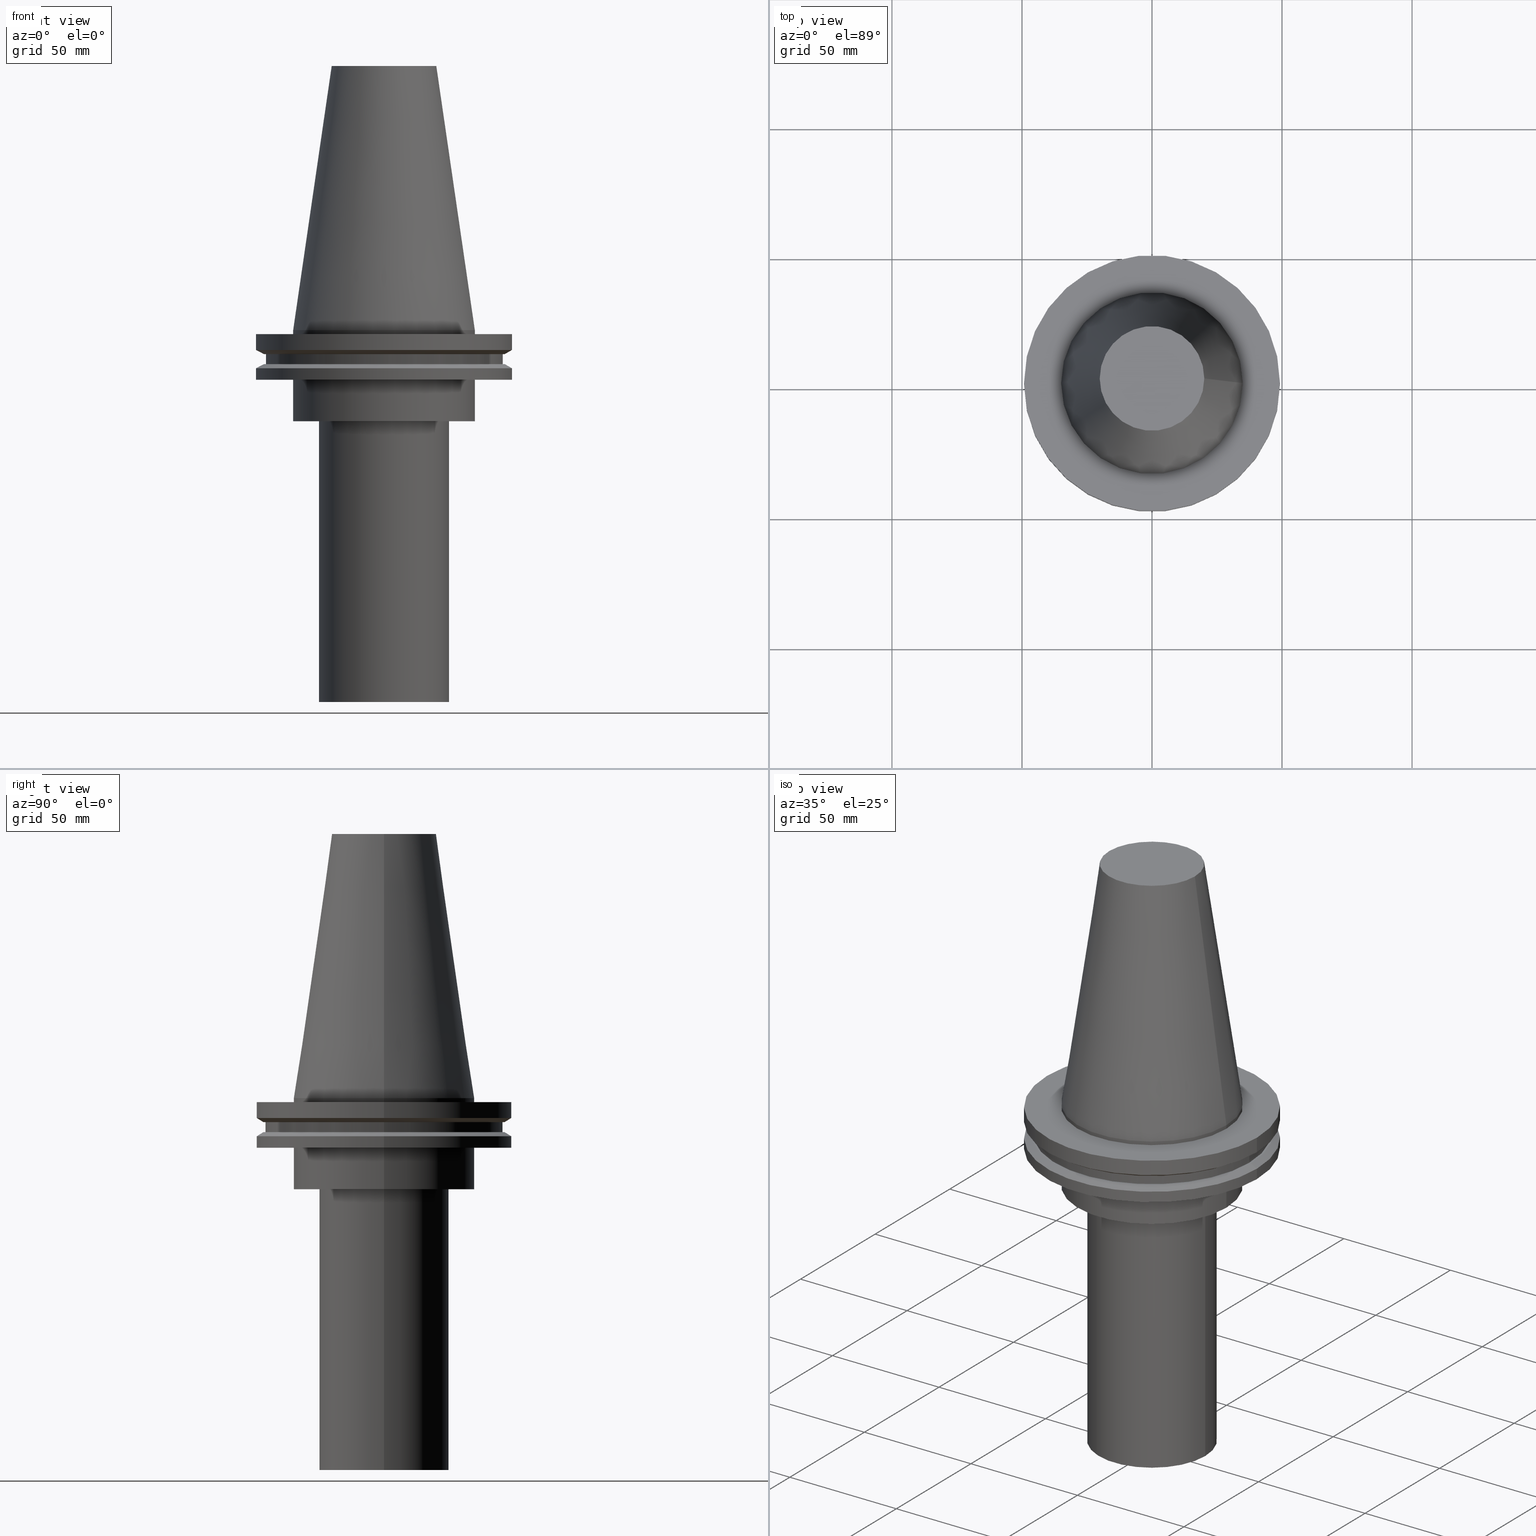
[diagram: canonical four-view strip — front | top / right | iso, engineering-drawing reading convention]
A machine part, canonical four-view strip (front | top / right | iso — engineering-drawing reading convention). The complete STEP part file that produces these views, byte-faithful:
ISO-10303-21;
HEADER;
FILE_DESCRIPTION (( 'STEP AP203' ),
    '1' );
FILE_NAME ('11.326.654.stp',
    '2022-03-09T14:51:51',
    ( '' ),
    ( '' ),
    'SwSTEP 2.0',
    'SolidWorks 2021',
    '' );
FILE_SCHEMA (( 'CONFIG_CONTROL_DESIGN' ));
ENDSEC;

DATA;
#1 = ORIENTED_EDGE ( 'NONE', *, *, #270, .F. ) ;
#2 = CYLINDRICAL_SURFACE ( 'NONE', #19, 25.00000000000000000 ) ;
#3 = PLANE ( 'NONE',  #97 ) ;
#4 = CALENDAR_DATE ( 2022, 9, 3 ) ;
#5 = FACE_OUTER_BOUND ( 'NONE', #246, .T. ) ;
#6 = AXIS2_PLACEMENT_3D ( 'NONE', #144, #106, #351 ) ;
#7 = LOCAL_TIME ( 8, 51, 51.00000000000000000, #321 ) ;
#8 = APPROVAL ( #382, 'UNSPECIFIED' ) ;
#9 = CARTESIAN_POINT ( 'NONE',  ( 0.000000000000000000, 0.000000000000000000, 0.000000000000000000 ) ) ;
#10 = CARTESIAN_POINT ( 'NONE',  ( 34.92499999999999716, 0.000000000000000000, -35.00000000000000000 ) ) ;
#11 = CARTESIAN_POINT ( 'NONE',  ( 0.000000000000000000, 0.000000000000000000, 101.5999999999999943 ) ) ;
#12 = DIRECTION ( 'NONE',  ( 0.000000000000000000, 0.000000000000000000, 1.000000000000000000 ) ) ;
#13 = APPROVAL_STATUS ( 'not_yet_approved' ) ;
#14 = AXIS2_PLACEMENT_3D ( 'NONE', #113, #89, #356 ) ;
#15 = AXIS2_PLACEMENT_3D ( 'NONE', #336, #12, #315 ) ;
#16 = CARTESIAN_POINT ( 'NONE',  ( 0.000000000000000000, 0.000000000000000000, 101.5999999999999801 ) ) ;
#17 = CARTESIAN_POINT ( 'NONE',  ( 0.000000000000000000, 25.00000000000000000, -142.9999999999999716 ) ) ;
#18 = APPROVAL_ROLE ( '' ) ;
#19 = AXIS2_PLACEMENT_3D ( 'NONE', #243, #173, #180 ) ;
#20 = EDGE_CURVE ( 'NONE', #332, #332, #350, .T. ) ;
#21 = FACE_OUTER_BOUND ( 'NONE', #328, .T. ) ;
#22 = CC_DESIGN_APPROVAL ( #250, ( #44 ) ) ;
#23 = ORIENTED_EDGE ( 'NONE', *, *, #115, .T. ) ;
#24 = CARTESIAN_POINT ( 'NONE',  ( 0.000000000000000000, 0.000000000000000000, -19.04999999999999716 ) ) ;
#25 = DIRECTION ( 'NONE',  ( 1.000000000000000000, 0.000000000000000000, 0.000000000000000000 ) ) ;
#26 = DIRECTION ( 'NONE',  ( 1.000000000000000000, 0.000000000000000000, 0.000000000000000000 ) ) ;
#27 = ORIENTED_EDGE ( 'NONE', *, *, #139, .F. ) ;
#28 = APPLICATION_PROTOCOL_DEFINITION ( 'international standard', 'config_control_design', 1994, #277 ) ;
#29 = CC_DESIGN_PERSON_AND_ORGANIZATION_ASSIGNMENT ( #76, #346, ( #46 ) ) ;
#30 = ORIENTED_EDGE ( 'NONE', *, *, #183, .T. ) ;
#31 = PRODUCT_DEFINITION_FORMATION_WITH_SPECIFIED_SOURCE ( 'ANY', '', #309, .NOT_KNOWN. ) ;
#32 = APPROVAL_DATE_TIME ( #157, #250 ) ;
#33 = DIRECTION ( 'NONE',  ( 1.000000000000000000, 0.000000000000000000, 0.000000000000000000 ) ) ;
#34 = ADVANCED_FACE ( 'NONE', ( #150, #247 ), #3, .F. ) ;
#35 = CARTESIAN_POINT ( 'NONE',  ( 34.92499999999999005, 0.000000000000000000, -1.499999999999987566 ) ) ;
#36 = DIRECTION ( 'NONE',  ( -0.000000000000000000, -0.000000000000000000, 1.000000000000000000 ) ) ;
#37 = MECHANICAL_CONTEXT ( 'NONE', #277, 'mechanical' ) ;
#38 = CARTESIAN_POINT ( 'NONE',  ( 0.000000000000000000, 0.000000000000000000, 0.000000000000000000 ) ) ;
#39 = ADVANCED_FACE ( 'NONE', ( #5 ), #241, .F. ) ;
#40 = CC_DESIGN_APPROVAL ( #8, ( #31 ) ) ;
#41 = DIRECTION ( 'NONE',  ( -0.000000000000000000, -0.000000000000000000, 1.000000000000000000 ) ) ;
#42 = DESIGN_CONTEXT ( 'detailed design', #393, 'design' ) ;
#43 = CALENDAR_DATE ( 2022, 9, 3 ) ;
#44 = PRODUCT_DEFINITION ( 'UNKNOWN', '', #31, #42 ) ;
#45 = AXIS2_PLACEMENT_3D ( 'NONE', #24, #182, #252 ) ;
#46 = SECURITY_CLASSIFICATION ( '', '', #384 ) ;
#47 = DIRECTION ( 'NONE',  ( 1.000000000000000000, 0.000000000000000000, 0.000000000000000000 ) ) ;
#48 = COORDINATED_UNIVERSAL_TIME_OFFSET ( 6, 0, .BEHIND. ) ;
#49 = FACE_OUTER_BOUND ( 'NONE', #75, .T. ) ;
#50 = FACE_OUTER_BOUND ( 'NONE', #117, .T. ) ;
#51 = CIRCLE ( 'NONE', #133, 45.64500000000000313 ) ;
#52 = DIRECTION ( 'NONE',  ( -0.000000000000000000, -0.000000000000000000, 1.000000000000000000 ) ) ;
#53 = ORIENTED_EDGE ( 'NONE', *, *, #207, .F. ) ;
#54 = ORIENTED_EDGE ( 'NONE', *, *, #112, .T. ) ;
#55 = VERTEX_POINT ( 'NONE', #387 ) ;
#56 = ORIENTED_EDGE ( 'NONE', *, *, #270, .T. ) ;
#57 = AXIS2_PLACEMENT_3D ( 'NONE', #11, #36, #378 ) ;
#58 = EDGE_LOOP ( 'NONE', ( #205 ) ) ;
#59 = VERTEX_POINT ( 'NONE', #338 ) ;
#60 = MANIFOLD_SOLID_BREP ( 'CKB', #132 ) ;
#61 = ORIENTED_EDGE ( 'NONE', *, *, #161, .F. ) ;
#62 = APPLICATION_PROTOCOL_DEFINITION ( 'international standard', 'config_control_design', 1994, #393 ) ;
#63 = ADVANCED_FACE ( 'NONE', ( #357, #148 ), #193, .T. ) ;
#64 = DIRECTION ( 'NONE',  ( -0.000000000000000000, -0.000000000000000000, 1.000000000000000000 ) ) ;
#65 = AXIS2_PLACEMENT_3D ( 'NONE', #159, #319, #312 ) ;
#66 = DIRECTION ( 'NONE',  ( 1.000000000000000000, 0.000000000000000000, 0.000000000000000000 ) ) ;
#67 = DIRECTION ( 'NONE',  ( -0.000000000000000000, -0.000000000000000000, 1.000000000000000000 ) ) ;
#68 = APPROVAL_ROLE ( '' ) ;
#69 = PLANE ( 'NONE',  #85 ) ;
#70 = AXIS2_PLACEMENT_3D ( 'NONE', #370, #188, #337 ) ;
#71 = CIRCLE ( 'NONE', #110, 45.64500000000000313 ) ;
#72 = DIRECTION ( 'NONE',  ( 1.000000000000000000, 0.000000000000000000, 0.000000000000000000 ) ) ;
#73 = EDGE_CURVE ( 'NONE', #55, #55, #172, .T. ) ;
#74 = SHAPE_DEFINITION_REPRESENTATION ( #240, #365 ) ;
#75 = EDGE_LOOP ( 'NONE', ( #363 ) ) ;
#76 = PERSON_AND_ORGANIZATION ( #299, #395 ) ;
#77 = DIRECTION ( 'NONE',  ( 1.000000000000000000, 0.000000000000000000, 0.000000000000000000 ) ) ;
#78 = CIRCLE ( 'NONE', #234, 34.92499999999999005 ) ;
#79 = FACE_BOUND ( 'NONE', #276, .T. ) ;
#80 = PERSON_AND_ORGANIZATION ( #299, #395 ) ;
#81 = EDGE_CURVE ( 'NONE', #236, #236, #269, .T. ) ;
#82 = CARTESIAN_POINT ( 'NONE',  ( 20.10819343178871321, 0.000000000000000000, 101.5999999999999801 ) ) ;
#83 = EDGE_LOOP ( 'NONE', ( #147 ) ) ;
#84 = CARTESIAN_POINT ( 'NONE',  ( 0.000000000000000000, 0.000000000000000000, 101.5999999999999943 ) ) ;
#85 = AXIS2_PLACEMENT_3D ( 'NONE', #165, #135, #99 ) ;
#86 = EDGE_LOOP ( 'NONE', ( #54 ) ) ;
#87 = DIRECTION ( 'NONE',  ( 1.000000000000000000, 0.000000000000000000, 0.000000000000000000 ) ) ;
#88 = ORIENTED_EDGE ( 'NONE', *, *, #73, .F. ) ;
#89 = DIRECTION ( 'NONE',  ( -0.000000000000000000, -0.000000000000000000, 1.000000000000000000 ) ) ;
#90 = EDGE_LOOP ( 'NONE', ( #30 ) ) ;
#91 = CYLINDRICAL_SURFACE ( 'NONE', #111, 34.92499999999999716 ) ;
#92 = EDGE_LOOP ( 'NONE', ( #210 ) ) ;
#93 = VERTEX_POINT ( 'NONE', #286 ) ;
#94 = DIRECTION ( 'NONE',  ( -1.000000000000000000, 0.000000000000000000, -0.000000000000000000 ) ) ;
#95 = DIRECTION ( 'NONE',  ( 1.000000000000000000, 0.000000000000000000, 0.000000000000000000 ) ) ;
#96 = DIRECTION ( 'NONE',  ( -0.000000000000000000, -0.000000000000000000, 1.000000000000000000 ) ) ;
#97 = AXIS2_PLACEMENT_3D ( 'NONE', #154, #304, #25 ) ;
#98 = VERTEX_POINT ( 'NONE', #217 ) ;
#99 = DIRECTION ( 'NONE',  ( 1.000000000000000000, 0.000000000000000000, 0.000000000000000000 ) ) ;
#100 = CARTESIAN_POINT ( 'NONE',  ( 45.64500000000000313, 0.000000000000000000, -9.204999999999991189 ) ) ;
#101 = FACE_BOUND ( 'NONE', #327, .T. ) ;
#102 = DIRECTION ( 'NONE',  ( -0.000000000000000000, -0.000000000000000000, 1.000000000000000000 ) ) ;
#103 = CC_DESIGN_DATE_AND_TIME_ASSIGNMENT ( #122, #367, ( #44 ) ) ;
#104 = CIRCLE ( 'NONE', #366, 34.92499999999999005 ) ;
#105 = PERSON_AND_ORGANIZATION_ROLE ( 'design_supplier' ) ;
#106 = DIRECTION ( 'NONE',  ( 0.000000000000000000, -0.000000000000000000, 1.000000000000000000 ) ) ;
#107 = ORIENTED_EDGE ( 'NONE', *, *, #81, .T. ) ;
#108 = ADVANCED_FACE ( 'NONE', ( #282, #345 ), #376, .F. ) ;
#109 = CYLINDRICAL_SURFACE ( 'NONE', #325, 45.64500000000000313 ) ;
#110 = AXIS2_PLACEMENT_3D ( 'NONE', #322, #389, #268 ) ;
#111 = AXIS2_PLACEMENT_3D ( 'NONE', #302, #245, #329 ) ;
#112 = EDGE_CURVE ( 'NONE', #189, #189, #78, .T. ) ;
#113 = CARTESIAN_POINT ( 'NONE',  ( 0.000000000000000000, 0.000000000000000000, 101.5999999999999943 ) ) ;
#114 = ORIENTED_EDGE ( 'NONE', *, *, #139, .T. ) ;
#115 = EDGE_CURVE ( 'NONE', #313, #313, #226, .T. ) ;
#116 = LOCAL_TIME ( 8, 51, 51.00000000000000000, #278 ) ;
#117 = EDGE_LOOP ( 'NONE', ( #214 ) ) ;
#118 = FACE_OUTER_BOUND ( 'NONE', #142, .T. ) ;
#119 = ORIENTED_EDGE ( 'NONE', *, *, #261, .F. ) ;
#120 = CARTESIAN_POINT ( 'NONE',  ( 0.000000000000000000, 0.000000000000000000, -9.204999999999991189 ) ) ;
#121 = CARTESIAN_POINT ( 'NONE',  ( 0.000000000000000000, 20.10819343178871321, 101.5999999999999943 ) ) ;
#122 = DATE_AND_TIME ( #4, #116 ) ;
#123 = CIRCLE ( 'NONE', #181, 49.21499999999999631 ) ;
#124 = DIRECTION ( 'NONE',  ( 0.000000000000000000, 0.000000000000000000, -1.000000000000000000 ) ) ;
#125 = LOCAL_TIME ( 8, 51, 51.00000000000000000, #134 ) ;
#126 = APPROVAL_PERSON_ORGANIZATION ( #186, #250, #68 ) ;
#127 = DIRECTION ( 'NONE',  ( 1.000000000000000000, 0.000000000000000000, 0.000000000000000000 ) ) ;
#128 = VERTEX_POINT ( 'NONE', #307 ) ;
#129 = DIRECTION ( 'NONE',  ( -0.000000000000000000, -0.000000000000000000, 1.000000000000000000 ) ) ;
#130 = PERSON_AND_ORGANIZATION_ROLE ( 'design_owner' ) ;
#131 = DIRECTION ( 'NONE',  ( 1.000000000000000000, 0.000000000000000000, 0.000000000000000000 ) ) ;
#132 = CLOSED_SHELL ( 'NONE', ( #233, #39, #34, #392, #136, #347, #175, #108, #296, #239, #385, #63, #283, #371, #364, #178 ) ) ;
#133 = AXIS2_PLACEMENT_3D ( 'NONE', #260, #102, #195 ) ;
#134 = COORDINATED_UNIVERSAL_TIME_OFFSET ( 6, 0, .BEHIND. ) ;
#135 = DIRECTION ( 'NONE',  ( 0.000000000000000000, -0.000000000000000000, 1.000000000000000000 ) ) ;
#136 = ADVANCED_FACE ( 'NONE', ( #162, #101 ), #69, .F. ) ;
#137 = CARTESIAN_POINT ( 'NONE',  ( 0.000000000000000000, 0.000000000000000000, -35.00000000000000000 ) ) ;
#138 = PERSON_AND_ORGANIZATION ( #299, #395 ) ;
#139 = EDGE_CURVE ( 'NONE', #369, #369, #168, .T. ) ;
#140 = AXIS2_PLACEMENT_3D ( 'NONE', #295, #170, #265 ) ;
#141 = PLANE ( 'NONE',  #140 ) ;
#142 = EDGE_LOOP ( 'NONE', ( #1 ) ) ;
#143 = PERSON_AND_ORGANIZATION ( #299, #395 ) ;
#144 = CARTESIAN_POINT ( 'NONE',  ( 0.000000000000000000, 46.43919780457007818, -9.204999999999998295 ) ) ;
#145 = AXIS2_PLACEMENT_3D ( 'NONE', #190, #314, #160 ) ;
#146 = FACE_OUTER_BOUND ( 'NONE', #231, .T. ) ;
#147 = ORIENTED_EDGE ( 'NONE', *, *, #20, .F. ) ;
#148 = FACE_OUTER_BOUND ( 'NONE', #176, .T. ) ;
#149 = CONICAL_SURFACE ( 'NONE', #375, 34.92499999999999005, 0.1448138465474119452 ) ;
#150 = FACE_BOUND ( 'NONE', #58, .T. ) ;
#151 = FACE_OUTER_BOUND ( 'NONE', #348, .T. ) ;
#152 = EDGE_LOOP ( 'NONE', ( #23 ) ) ;
#153 = DIRECTION ( 'NONE',  ( -0.000000000000000000, -0.000000000000000000, 1.000000000000000000 ) ) ;
#154 = CARTESIAN_POINT ( 'NONE',  ( 0.000000000000000000, 34.92499999999999716, -35.00000000000000000 ) ) ;
#155 = PERSON_AND_ORGANIZATION ( #299, #395 ) ;
#156 = PLANE ( 'NONE',  #311 ) ;
#157 = DATE_AND_TIME ( #310, #125 ) ;
#158 = APPROVAL ( #201, 'UNSPECIFIED' ) ;
#159 = CARTESIAN_POINT ( 'NONE',  ( 0.000000000000000000, 45.64500000000000313, -13.05499999999999794 ) ) ;
#160 = DIRECTION ( 'NONE',  ( 1.000000000000000000, 0.000000000000000000, 0.000000000000000000 ) ) ;
#161 = EDGE_CURVE ( 'NONE', #284, #284, #51, .T. ) ;
#162 = FACE_OUTER_BOUND ( 'NONE', #179, .T. ) ;
#163 = CONICAL_SURFACE ( 'NONE', #187, 46.43919780457007818, 1.047197551196575205 ) ;
#164 = CC_DESIGN_PERSON_AND_ORGANIZATION_ASSIGNMENT ( #80, #166, ( #31 ) ) ;
#165 = CARTESIAN_POINT ( 'NONE',  ( 0.000000000000000000, 49.21499999999998920, -19.04999999999999716 ) ) ;
#166 = PERSON_AND_ORGANIZATION_ROLE ( 'creator' ) ;
#167 = DATE_AND_TIME ( #379, #169 ) ;
#168 = CIRCLE ( 'NONE', #323, 46.43919780457007818 ) ;
#169 = LOCAL_TIME ( 8, 51, 51.00000000000000000, #48 ) ;
#170 = DIRECTION ( 'NONE',  ( 0.000000000000000000, 0.000000000000000000, -1.000000000000000000 ) ) ;
#171 = CC_DESIGN_PERSON_AND_ORGANIZATION_ASSIGNMENT ( #259, #377, ( #44 ) ) ;
#172 = CIRCLE ( 'NONE', #339, 49.21499999999998920 ) ;
#173 = DIRECTION ( 'NONE',  ( -0.000000000000000000, -0.000000000000000000, 1.000000000000000000 ) ) ;
#174 = DIRECTION ( 'NONE',  ( -0.000000000000000000, -0.000000000000000000, 1.000000000000000000 ) ) ;
#175 = ADVANCED_FACE ( 'NONE', ( #263, #291 ), #352, .T. ) ;
#176 = EDGE_LOOP ( 'NONE', ( #56 ) ) ;
#177 = FACE_OUTER_BOUND ( 'NONE', #271, .T. ) ;
#178 = ADVANCED_FACE ( 'NONE', ( #320 ), #156, .F. ) ;
#179 = EDGE_LOOP ( 'NONE', ( #88 ) ) ;
#180 = DIRECTION ( 'NONE',  ( 1.000000000000000000, 0.000000000000000000, 0.000000000000000000 ) ) ;
#181 = AXIS2_PLACEMENT_3D ( 'NONE', #340, #191, #66 ) ;
#182 = DIRECTION ( 'NONE',  ( -0.000000000000000000, -0.000000000000000000, 1.000000000000000000 ) ) ;
#183 = EDGE_CURVE ( 'NONE', #257, #257, #104, .T. ) ;
#184 = EDGE_LOOP ( 'NONE', ( #354 ) ) ;
#185 = EDGE_LOOP ( 'NONE', ( #301 ) ) ;
#186 = PERSON_AND_ORGANIZATION ( #299, #395 ) ;
#187 = AXIS2_PLACEMENT_3D ( 'NONE', #120, #174, #358 ) ;
#188 = DIRECTION ( 'NONE',  ( 0.000000000000000000, 0.000000000000000000, -1.000000000000000000 ) ) ;
#189 = VERTEX_POINT ( 'NONE', #255 ) ;
#190 = CARTESIAN_POINT ( 'NONE',  ( 0.000000000000000000, 0.000000000000000000, -9.204999999999991189 ) ) ;
#191 = DIRECTION ( 'NONE',  ( -0.000000000000000000, -0.000000000000000000, 1.000000000000000000 ) ) ;
#192 = CARTESIAN_POINT ( 'NONE',  ( 49.21499999999998920, 0.000000000000000000, -14.65761014474876944 ) ) ;
#193 = CYLINDRICAL_SURFACE ( 'NONE', #57, 49.21499999999999631 ) ;
#194 = CIRCLE ( 'NONE', #145, 46.43919780457007818 ) ;
#195 = DIRECTION ( 'NONE',  ( 1.000000000000000000, 0.000000000000000000, 0.000000000000000000 ) ) ;
#196 = EDGE_CURVE ( 'NONE', #213, #213, #297, .T. ) ;
#197 = EDGE_LOOP ( 'NONE', ( #335 ) ) ;
#198 = CC_DESIGN_PERSON_AND_ORGANIZATION_ASSIGNMENT ( #155, #130, ( #309 ) ) ;
#199 = CIRCLE ( 'NONE', #202, 49.21500000000000341 ) ;
#200 = EDGE_CURVE ( 'NONE', #93, #93, #218, .T. ) ;
#201 = APPROVAL_STATUS ( 'not_yet_approved' ) ;
#202 = AXIS2_PLACEMENT_3D ( 'NONE', #237, #294, #47 ) ;
#203 = FACE_OUTER_BOUND ( 'NONE', #90, .T. ) ;
#204 = CC_DESIGN_SECURITY_CLASSIFICATION ( #46, ( #31 ) ) ;
#205 = ORIENTED_EDGE ( 'NONE', *, *, #196, .T. ) ;
#206 = CYLINDRICAL_SURFACE ( 'NONE', #14, 49.21499999999998920 ) ;
#207 = EDGE_CURVE ( 'NONE', #128, #128, #123, .T. ) ;
#208 = EDGE_LOOP ( 'NONE', ( #114 ) ) ;
#209 = CYLINDRICAL_SURFACE ( 'NONE', #242, 34.92499999999999005 ) ;
#210 = ORIENTED_EDGE ( 'NONE', *, *, #224, .F. ) ;
#211 = FACE_BOUND ( 'NONE', #244, .T. ) ;
#212 = ORIENTED_EDGE ( 'NONE', *, *, #183, .F. ) ;
#213 = VERTEX_POINT ( 'NONE', #342 ) ;
#214 = ORIENTED_EDGE ( 'NONE', *, *, #115, .F. ) ;
#215 = DIRECTION ( 'NONE',  ( -0.000000000000000000, -0.000000000000000000, 1.000000000000000000 ) ) ;
#216 = UNCERTAINTY_MEASURE_WITH_UNIT (LENGTH_MEASURE( 1.000000000000000082E-05 ), #372, 'distance_accuracy_value', 'NONE');
#217 = CARTESIAN_POINT ( 'NONE',  ( 45.64500000000000313, 0.000000000000000000, -13.05499999999999794 ) ) ;
#218 = CIRCLE ( 'NONE', #331, 25.00000000000000000 ) ;
#219 = DIRECTION ( 'NONE',  ( 0.000000000000000000, -0.000000000000000000, 1.000000000000000000 ) ) ;
#220 = APPROVAL_PERSON_ORGANIZATION ( #138, #158, #18 ) ;
#221 = CARTESIAN_POINT ( 'NONE',  ( 0.000000000000000000, 0.000000000000000000, -19.04999999999999716 ) ) ;
#222 =( NAMED_UNIT ( * ) PLANE_ANGLE_UNIT ( ) SI_UNIT ( $, .RADIAN. ) );
#223 = DIRECTION ( 'NONE',  ( -0.000000000000000000, -0.000000000000000000, 1.000000000000000000 ) ) ;
#224 = EDGE_CURVE ( 'NONE', #253, #253, #194, .T. ) ;
#225 = DIRECTION ( 'NONE',  ( -0.000000000000000000, -0.000000000000000000, 1.000000000000000000 ) ) ;
#226 = CIRCLE ( 'NONE', #318, 49.21499999999998920 ) ;
#227 = CC_DESIGN_APPROVAL ( #158, ( #46 ) ) ;
#228 = DATE_AND_TIME ( #43, #251 ) ;
#229 = APPROVAL_DATE_TIME ( #167, #158 ) ;
#230 = CARTESIAN_POINT ( 'NONE',  ( 0.000000000000000000, 0.000000000000000000, 101.5999999999999943 ) ) ;
#231 = EDGE_LOOP ( 'NONE', ( #279 ) ) ;
#232 = FACE_OUTER_BOUND ( 'NONE', #92, .T. ) ;
#233 = ADVANCED_FACE ( 'NONE', ( #316, #287 ), #149, .T. ) ;
#234 = AXIS2_PLACEMENT_3D ( 'NONE', #9, #225, #131 ) ;
#235 = CALENDAR_DATE ( 2022, 9, 3 ) ;
#236 = VERTEX_POINT ( 'NONE', #82 ) ;
#237 = CARTESIAN_POINT ( 'NONE',  ( 0.000000000000000000, 0.000000000000000000, -7.602389855251287187 ) ) ;
#238 = ORIENTED_EDGE ( 'NONE', *, *, #196, .F. ) ;
#239 = ADVANCED_FACE ( 'NONE', ( #232, #381 ), #353, .F. ) ;
#240 = PRODUCT_DEFINITION_SHAPE ( 'NONE', 'NONE',  #44 ) ;
#241 = PLANE ( 'NONE',  #248 ) ;
#242 = AXIS2_PLACEMENT_3D ( 'NONE', #84, #52, #26 ) ;
#243 = CARTESIAN_POINT ( 'NONE',  ( 0.000000000000000000, 0.000000000000000000, 0.000000000000000000 ) ) ;
#244 = EDGE_LOOP ( 'NONE', ( #394 ) ) ;
#245 = DIRECTION ( 'NONE',  ( -0.000000000000000000, -0.000000000000000000, 1.000000000000000000 ) ) ;
#246 = EDGE_LOOP ( 'NONE', ( #107 ) ) ;
#247 = FACE_OUTER_BOUND ( 'NONE', #306, .T. ) ;
#248 = AXIS2_PLACEMENT_3D ( 'NONE', #121, #124, #94 ) ;
#249 = AXIS2_PLACEMENT_3D ( 'NONE', #16, #223, #343 ) ;
#250 = APPROVAL ( #13, 'UNSPECIFIED' ) ;
#251 = LOCAL_TIME ( 8, 51, 51.00000000000000000, #267 ) ;
#252 = DIRECTION ( 'NONE',  ( 1.000000000000000000, 0.000000000000000000, 0.000000000000000000 ) ) ;
#253 = VERTEX_POINT ( 'NONE', #334 ) ;
#254 = CARTESIAN_POINT ( 'NONE',  ( 0.000000000000000000, 0.000000000000000000, -13.05499999999999794 ) ) ;
#255 = CARTESIAN_POINT ( 'NONE',  ( 34.92499999999999005, 0.000000000000000000, 0.000000000000000000 ) ) ;
#256 = DIRECTION ( 'NONE',  ( 1.000000000000000000, 0.000000000000000000, 0.000000000000000000 ) ) ;
#257 = VERTEX_POINT ( 'NONE', #35 ) ;
#258 = CARTESIAN_POINT ( 'NONE',  ( 0.000000000000000000, 0.000000000000000000, -142.9999999999999716 ) ) ;
#259 = PERSON_AND_ORGANIZATION ( #299, #395 ) ;
#260 = CARTESIAN_POINT ( 'NONE',  ( 0.000000000000000000, 0.000000000000000000, -9.204999999999991189 ) ) ;
#261 = EDGE_CURVE ( 'NONE', #98, #98, #71, .T. ) ;
#262 = DATE_TIME_ROLE ( 'classification_date' ) ;
#263 = FACE_BOUND ( 'NONE', #330, .T. ) ;
#264 =( GEOMETRIC_REPRESENTATION_CONTEXT ( 3 ) GLOBAL_UNCERTAINTY_ASSIGNED_CONTEXT ( ( #216 ) ) GLOBAL_UNIT_ASSIGNED_CONTEXT ( ( #372, #222, #317 ) ) REPRESENTATION_CONTEXT ( 'NONE', 'WORKASPACE' ) );
#265 = DIRECTION ( 'NONE',  ( -1.000000000000000000, 0.000000000000000000, -0.000000000000000000 ) ) ;
#266 = ORIENTED_EDGE ( 'NONE', *, *, #73, .T. ) ;
#267 = COORDINATED_UNIVERSAL_TIME_OFFSET ( 6, 0, .BEHIND. ) ;
#268 = DIRECTION ( 'NONE',  ( 1.000000000000000000, 0.000000000000000000, 0.000000000000000000 ) ) ;
#269 = CIRCLE ( 'NONE', #249, 20.10819343178871321 ) ;
#270 = EDGE_CURVE ( 'NONE', #59, #59, #199, .T. ) ;
#271 = EDGE_LOOP ( 'NONE', ( #275 ) ) ;
#272 = FACE_OUTER_BOUND ( 'NONE', #185, .T. ) ;
#273 = EDGE_LOOP ( 'NONE', ( #53 ) ) ;
#274 = CARTESIAN_POINT ( 'NONE',  ( 0.000000000000000000, 0.000000000000000000, -35.00000000000000000 ) ) ;
#275 = ORIENTED_EDGE ( 'NONE', *, *, #388, .T. ) ;
#276 = EDGE_LOOP ( 'NONE', ( #212 ) ) ;
#277 = APPLICATION_CONTEXT ( 'configuration controlled 3d designs of mechanical parts and assemblies' ) ;
#278 = COORDINATED_UNIVERSAL_TIME_OFFSET ( 6, 0, .BEHIND. ) ;
#279 = ORIENTED_EDGE ( 'NONE', *, *, #112, .F. ) ;
#280 = AXIS2_PLACEMENT_3D ( 'NONE', #137, #129, #256 ) ;
#281 = APPROVAL_PERSON_ORGANIZATION ( #293, #8, #290 ) ;
#282 = FACE_BOUND ( 'NONE', #361, .T. ) ;
#283 = ADVANCED_FACE ( 'NONE', ( #79, #49 ), #141, .F. ) ;
#284 = VERTEX_POINT ( 'NONE', #100 ) ;
#285 = CARTESIAN_POINT ( 'NONE',  ( 0.000000000000000000, 0.000000000000000000, -1.499999999999987566 ) ) ;
#286 = CARTESIAN_POINT ( 'NONE',  ( 25.00000000000000000, 0.000000000000000000, -142.9999999999999716 ) ) ;
#287 = FACE_OUTER_BOUND ( 'NONE', #86, .T. ) ;
#288 = VERTEX_POINT ( 'NONE', #10 ) ;
#289 = DIRECTION ( 'NONE',  ( 0.000000000000000000, 0.000000000000000000, -1.000000000000000000 ) ) ;
#290 = APPROVAL_ROLE ( '' ) ;
#291 = FACE_OUTER_BOUND ( 'NONE', #152, .T. ) ;
#292 = DATE_AND_TIME ( #235, #7 ) ;
#293 = PERSON_AND_ORGANIZATION ( #299, #395 ) ;
#294 = DIRECTION ( 'NONE',  ( -0.000000000000000000, -0.000000000000000000, 1.000000000000000000 ) ) ;
#295 = CARTESIAN_POINT ( 'NONE',  ( 0.000000000000000000, 49.21499999999999631, -1.499999999999992895 ) ) ;
#296 = ADVANCED_FACE ( 'NONE', ( #383, #21 ), #109, .T. ) ;
#297 = CIRCLE ( 'NONE', #280, 25.00000000000000000 ) ;
#298 = ORIENTED_EDGE ( 'NONE', *, *, #20, .T. ) ;
#299 = PERSON ( 'UNSPECIFIED', 'UNSPECIFIED', 'UNSPECIFIED', ('UNSPECIFIED'), ('UNSPECIFIED'), ('UNSPECIFIED') ) ;
#300 = CC_DESIGN_DATE_AND_TIME_ASSIGNMENT ( #292, #262, ( #46 ) ) ;
#301 = ORIENTED_EDGE ( 'NONE', *, *, #200, .T. ) ;
#302 = CARTESIAN_POINT ( 'NONE',  ( 0.000000000000000000, 0.000000000000000000, 101.5999999999999943 ) ) ;
#303 = CIRCLE ( 'NONE', #386, 34.92499999999999716 ) ;
#304 = DIRECTION ( 'NONE',  ( 0.000000000000000000, -0.000000000000000000, 1.000000000000000000 ) ) ;
#305 = FACE_OUTER_BOUND ( 'NONE', #308, .T. ) ;
#306 = EDGE_LOOP ( 'NONE', ( #391 ) ) ;
#307 = CARTESIAN_POINT ( 'NONE',  ( 49.21499999999999631, 0.000000000000000000, -1.499999999999987566 ) ) ;
#308 = EDGE_LOOP ( 'NONE', ( #266 ) ) ;
#309 = PRODUCT ( '11.326.654', '11.326.654', '', ( #37 ) ) ;
#310 = CALENDAR_DATE ( 2022, 9, 3 ) ;
#311 = AXIS2_PLACEMENT_3D ( 'NONE', #17, #219, #127 ) ;
#312 = DIRECTION ( 'NONE',  ( -1.000000000000000000, 0.000000000000000000, -0.000000000000000000 ) ) ;
#313 = VERTEX_POINT ( 'NONE', #192 ) ;
#314 = DIRECTION ( 'NONE',  ( -0.000000000000000000, -0.000000000000000000, 1.000000000000000000 ) ) ;
#315 = DIRECTION ( 'NONE',  ( 1.000000000000000000, 0.000000000000000000, 0.000000000000000000 ) ) ;
#316 = FACE_BOUND ( 'NONE', #184, .T. ) ;
#317 =( NAMED_UNIT ( * ) SI_UNIT ( $, .STERADIAN. ) SOLID_ANGLE_UNIT ( ) );
#318 = AXIS2_PLACEMENT_3D ( 'NONE', #380, #41, #72 ) ;
#319 = DIRECTION ( 'NONE',  ( 0.000000000000000000, 0.000000000000000000, -1.000000000000000000 ) ) ;
#320 = FACE_OUTER_BOUND ( 'NONE', #368, .T. ) ;
#321 = COORDINATED_UNIVERSAL_TIME_OFFSET ( 6, 0, .BEHIND. ) ;
#322 = CARTESIAN_POINT ( 'NONE',  ( 0.000000000000000000, 0.000000000000000000, -13.05499999999999794 ) ) ;
#323 = AXIS2_PLACEMENT_3D ( 'NONE', #254, #96, #33 ) ;
#324 = DIRECTION ( 'NONE',  ( -1.000000000000000000, 0.000000000000000000, 0.000000000000000000 ) ) ;
#325 = AXIS2_PLACEMENT_3D ( 'NONE', #230, #349, #77 ) ;
#326 = CC_DESIGN_PERSON_AND_ORGANIZATION_ASSIGNMENT ( #143, #105, ( #31 ) ) ;
#327 = EDGE_LOOP ( 'NONE', ( #298 ) ) ;
#328 = EDGE_LOOP ( 'NONE', ( #359 ) ) ;
#329 = DIRECTION ( 'NONE',  ( 1.000000000000000000, 0.000000000000000000, 0.000000000000000000 ) ) ;
#330 = EDGE_LOOP ( 'NONE', ( #27 ) ) ;
#331 = AXIS2_PLACEMENT_3D ( 'NONE', #258, #215, #373 ) ;
#332 = VERTEX_POINT ( 'NONE', #360 ) ;
#333 = EDGE_LOOP ( 'NONE', ( #61 ) ) ;
#334 = CARTESIAN_POINT ( 'NONE',  ( 46.43919780457007818, 0.000000000000000000, -9.204999999999991189 ) ) ;
#335 = ORIENTED_EDGE ( 'NONE', *, *, #161, .T. ) ;
#336 = CARTESIAN_POINT ( 'NONE',  ( 0.000000000000000000, 0.000000000000000000, 0.000000000000000000 ) ) ;
#337 = DIRECTION ( 'NONE',  ( -1.000000000000000000, 0.000000000000000000, 0.000000000000000000 ) ) ;
#338 = CARTESIAN_POINT ( 'NONE',  ( 49.21500000000000341, 0.000000000000000000, -7.602389855251287187 ) ) ;
#339 = AXIS2_PLACEMENT_3D ( 'NONE', #221, #64, #341 ) ;
#340 = CARTESIAN_POINT ( 'NONE',  ( 0.000000000000000000, 0.000000000000000000, -1.499999999999987566 ) ) ;
#341 = DIRECTION ( 'NONE',  ( 1.000000000000000000, 0.000000000000000000, 0.000000000000000000 ) ) ;
#342 = CARTESIAN_POINT ( 'NONE',  ( 25.00000000000000000, 0.000000000000000000, -35.00000000000000000 ) ) ;
#343 = DIRECTION ( 'NONE',  ( 1.000000000000000000, 0.000000000000000000, 0.000000000000000000 ) ) ;
#344 = APPROVAL_DATE_TIME ( #228, #8 ) ;
#345 = FACE_OUTER_BOUND ( 'NONE', #208, .T. ) ;
#346 = PERSON_AND_ORGANIZATION_ROLE ( 'classification_officer' ) ;
#347 = ADVANCED_FACE ( 'NONE', ( #50, #305 ), #206, .T. ) ;
#348 = EDGE_LOOP ( 'NONE', ( #238 ) ) ;
#349 = DIRECTION ( 'NONE',  ( -0.000000000000000000, -0.000000000000000000, 1.000000000000000000 ) ) ;
#350 = CIRCLE ( 'NONE', #45, 34.92499999999999716 ) ;
#351 = DIRECTION ( 'NONE',  ( 1.000000000000000000, 0.000000000000000000, 0.000000000000000000 ) ) ;
#352 = CONICAL_SURFACE ( 'NONE', #70, 49.21499999999998920, 1.047197551196554333 ) ;
#353 = PLANE ( 'NONE',  #6 ) ;
#354 = ORIENTED_EDGE ( 'NONE', *, *, #81, .F. ) ;
#355 = PRODUCT_RELATED_PRODUCT_CATEGORY ( 'detail', '', ( #309 ) ) ;
#356 = DIRECTION ( 'NONE',  ( 1.000000000000000000, 0.000000000000000000, 0.000000000000000000 ) ) ;
#357 = FACE_OUTER_BOUND ( 'NONE', #273, .T. ) ;
#358 = DIRECTION ( 'NONE',  ( 1.000000000000000000, 0.000000000000000000, 0.000000000000000000 ) ) ;
#359 = ORIENTED_EDGE ( 'NONE', *, *, #261, .T. ) ;
#360 = CARTESIAN_POINT ( 'NONE',  ( 34.92499999999999716, 0.000000000000000000, -19.04999999999999716 ) ) ;
#361 = EDGE_LOOP ( 'NONE', ( #119 ) ) ;
#362 = FACE_OUTER_BOUND ( 'NONE', #83, .T. ) ;
#363 = ORIENTED_EDGE ( 'NONE', *, *, #207, .T. ) ;
#364 = ADVANCED_FACE ( 'NONE', ( #151, #272 ), #2, .T. ) ;
#365 = ADVANCED_BREP_SHAPE_REPRESENTATION ( '11.326.654', ( #60, #15 ), #264 ) ;
#366 = AXIS2_PLACEMENT_3D ( 'NONE', #285, #67, #95 ) ;
#367 = DATE_TIME_ROLE ( 'creation_date' ) ;
#368 = EDGE_LOOP ( 'NONE', ( #390 ) ) ;
#369 = VERTEX_POINT ( 'NONE', #374 ) ;
#370 = CARTESIAN_POINT ( 'NONE',  ( 0.000000000000000000, 0.000000000000000000, -14.65761014474876944 ) ) ;
#371 = ADVANCED_FACE ( 'NONE', ( #146, #203 ), #209, .T. ) ;
#372 =( LENGTH_UNIT ( ) NAMED_UNIT ( * ) SI_UNIT ( .MILLI., .METRE. ) );
#373 = DIRECTION ( 'NONE',  ( 1.000000000000000000, 0.000000000000000000, 0.000000000000000000 ) ) ;
#374 = CARTESIAN_POINT ( 'NONE',  ( 46.43919780457007818, 0.000000000000000000, -13.05499999999999794 ) ) ;
#375 = AXIS2_PLACEMENT_3D ( 'NONE', #38, #289, #324 ) ;
#376 = PLANE ( 'NONE',  #65 ) ;
#377 = PERSON_AND_ORGANIZATION_ROLE ( 'creator' ) ;
#378 = DIRECTION ( 'NONE',  ( 1.000000000000000000, 0.000000000000000000, 0.000000000000000000 ) ) ;
#379 = CALENDAR_DATE ( 2022, 9, 3 ) ;
#380 = CARTESIAN_POINT ( 'NONE',  ( 0.000000000000000000, 0.000000000000000000, -14.65761014474876944 ) ) ;
#381 = FACE_BOUND ( 'NONE', #197, .T. ) ;
#382 = APPROVAL_STATUS ( 'not_yet_approved' ) ;
#383 = FACE_OUTER_BOUND ( 'NONE', #333, .T. ) ;
#384 = SECURITY_CLASSIFICATION_LEVEL ( 'unclassified' ) ;
#385 = ADVANCED_FACE ( 'NONE', ( #118, #211 ), #163, .T. ) ;
#386 = AXIS2_PLACEMENT_3D ( 'NONE', #274, #153, #87 ) ;
#387 = CARTESIAN_POINT ( 'NONE',  ( 49.21499999999998920, 0.000000000000000000, -19.04999999999999716 ) ) ;
#388 = EDGE_CURVE ( 'NONE', #288, #288, #303, .T. ) ;
#389 = DIRECTION ( 'NONE',  ( -0.000000000000000000, -0.000000000000000000, 1.000000000000000000 ) ) ;
#390 = ORIENTED_EDGE ( 'NONE', *, *, #200, .F. ) ;
#391 = ORIENTED_EDGE ( 'NONE', *, *, #388, .F. ) ;
#392 = ADVANCED_FACE ( 'NONE', ( #362, #177 ), #91, .T. ) ;
#393 = APPLICATION_CONTEXT ( 'configuration controlled 3d designs of mechanical parts and assemblies' ) ;
#394 = ORIENTED_EDGE ( 'NONE', *, *, #224, .T. ) ;
#395 = ORGANIZATION ( 'UNSPECIFIED', 'UNSPECIFIED', '' ) ;
ENDSEC;
END-ISO-10303-21;
